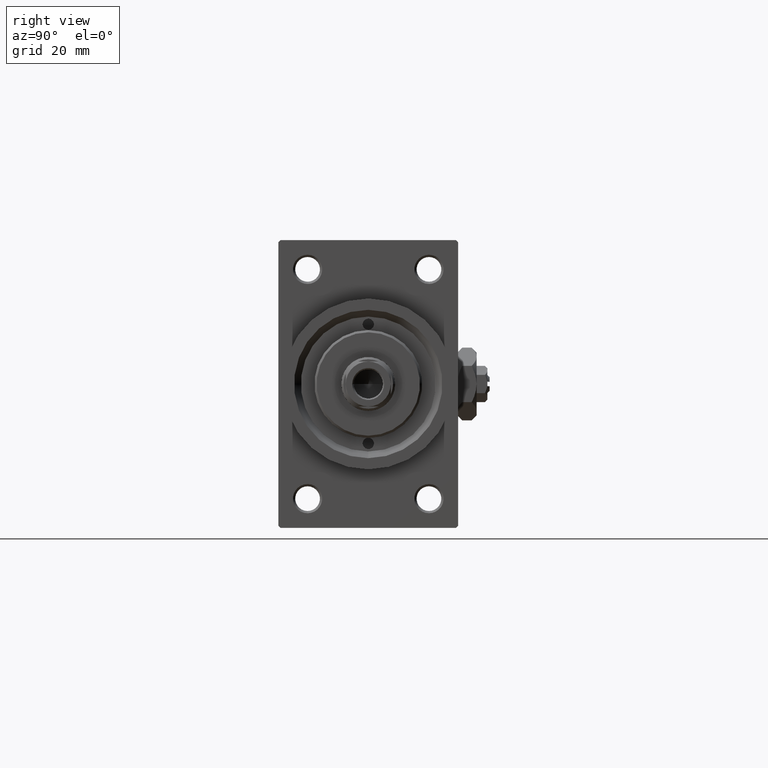
[diagram: clean part render]
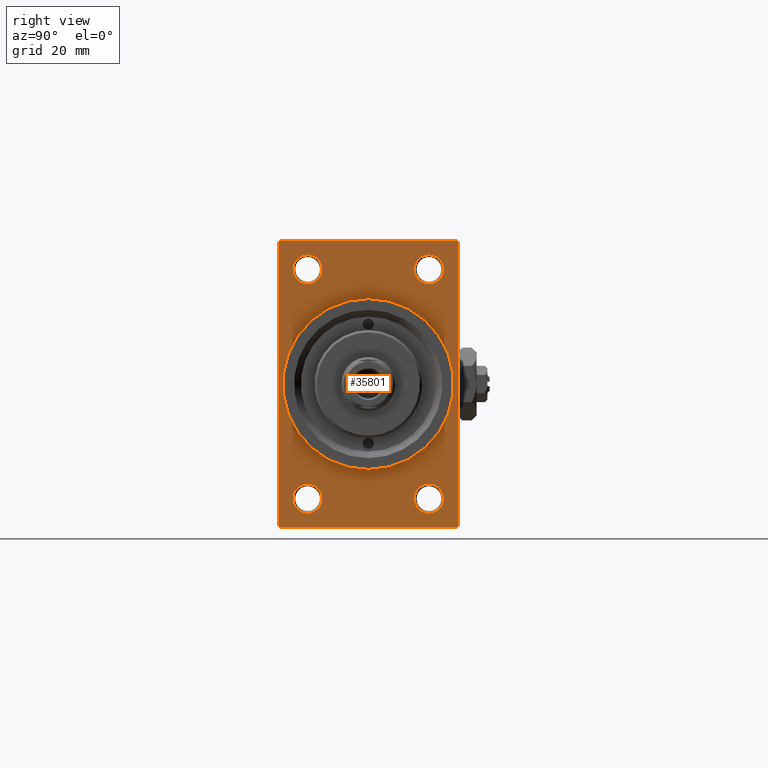
[diagram: same view with one face highlighted and labeled with its STEP entity id]
A machine part, right view. The second image highlights one B-rep face of the part: STEP entity #35801.
In plain terms, the highlighted planar face has unit normal (-1, 0, 0).
Its self-contained STEP definition (entity closure, byte-faithful):
#141 = EDGE_CURVE ( 'NONE', #18874, #3846, #30075, .T. ) ;
#264 = ORIENTED_EDGE ( 'NONE', *, *, #44603, .F. ) ;
#791 = DIRECTION ( 'NONE',  ( 0.000000000000000000, -1.000000000000000000, -1.734723475976807094E-16 ) ) ;
#867 = CARTESIAN_POINT ( 'NONE',  ( 109.0000000000000142, -20.00000000000000000, 31.99999999999999289 ) ) ;
#1477 = DIRECTION ( 'NONE',  ( -0.000000000000000000, 0.000000000000000000, 1.000000000000000000 ) ) ;
#1538 = CARTESIAN_POINT ( 'NONE',  ( 109.0000000000000142, -13.50000000000000533, -25.49999999999999645 ) ) ;
#1567 = AXIS2_PLACEMENT_3D ( 'NONE', #3922, #11346, #22986 ) ;
#1988 = ORIENTED_EDGE ( 'NONE', *, *, #42463, .T. ) ;
#2465 = CARTESIAN_POINT ( 'NONE',  ( 109.0000000000000142, 13.49999999999999822, 22.25000000000004263 ) ) ;
#3302 = VERTEX_POINT ( 'NONE', #43445 ) ;
#3702 = CIRCLE ( 'NONE', #32974, 3.249999999999961364 ) ;
#3846 = VERTEX_POINT ( 'NONE', #7112 ) ;
#3922 = CARTESIAN_POINT ( 'NONE',  ( 109.0000000000000142, 0.000000000000000000, 0.000000000000000000 ) ) ;
#4489 = CARTESIAN_POINT ( 'NONE',  ( 109.0000000000000142, 20.00000000000000000, 32.00000000000000000 ) ) ;
#4572 = DIRECTION ( 'NONE',  ( -1.000000000000000000, -0.000000000000000000, -0.000000000000000000 ) ) ;
#4925 = FACE_BOUND ( 'NONE', #12570, .T. ) ;
#5643 = CARTESIAN_POINT ( 'NONE',  ( 109.0000000000000142, 0.000000000000000000, 0.000000000000000000 ) ) ;
#5711 = CARTESIAN_POINT ( 'NONE',  ( 109.0000000000000142, 0.000000000000000000, 19.00000000000000000 ) ) ;
#5861 = DIRECTION ( 'NONE',  ( 0.000000000000000000, 0.000000000000000000, 1.000000000000000000 ) ) ;
#6114 = DIRECTION ( 'NONE',  ( -0.000000000000000000, 0.7071067811865474617, 0.7071067811865474617 ) ) ;
#6420 = VERTEX_POINT ( 'NONE', #36009 ) ;
#6839 = CARTESIAN_POINT ( 'NONE',  ( 109.0000000000000142, 20.00000000000000000, -31.49999999999998579 ) ) ;
#7112 = CARTESIAN_POINT ( 'NONE',  ( 109.0000000000000142, -20.00000000000000000, -31.49999999999997868 ) ) ;
#7279 = EDGE_CURVE ( 'NONE', #46365, #23432, #33681, .T. ) ;
#8070 = AXIS2_PLACEMENT_3D ( 'NONE', #27501, #38393, #30724 ) ;
#8392 = PLANE ( 'NONE',  #27912 ) ;
#8524 = CARTESIAN_POINT ( 'NONE',  ( 109.0000000000000142, -13.50000000000000533, -25.49999999999999645 ) ) ;
#8645 = FACE_BOUND ( 'NONE', #10812, .T. ) ;
#8891 = FACE_BOUND ( 'NONE', #32470, .T. ) ;
#9467 = EDGE_CURVE ( 'NONE', #11987, #48658, #24286, .T. ) ;
#9572 = ORIENTED_EDGE ( 'NONE', *, *, #28408, .F. ) ;
#9893 = DIRECTION ( 'NONE',  ( 0.000000000000000000, 0.000000000000000000, -1.000000000000000000 ) ) ;
#10466 = ORIENTED_EDGE ( 'NONE', *, *, #141, .T. ) ;
#10627 = CIRCLE ( 'NONE', #19350, 3.250000000000002665 ) ;
#10674 = LINE ( 'NONE', #25769, #46264 ) ;
#10676 = ORIENTED_EDGE ( 'NONE', *, *, #29156, .T. ) ;
#10812 = EDGE_LOOP ( 'NONE', ( #30684, #9572 ) ) ;
#11049 = CIRCLE ( 'NONE', #1567, 19.00000000000000000 ) ;
#11346 = DIRECTION ( 'NONE',  ( 1.000000000000000000, 0.000000000000000000, 0.000000000000000000 ) ) ;
#11987 = VERTEX_POINT ( 'NONE', #42115 ) ;
#12570 = EDGE_LOOP ( 'NONE', ( #46956, #10676 ) ) ;
#12898 = EDGE_CURVE ( 'NONE', #46845, #30341, #19323, .T. ) ;
#13048 = DIRECTION ( 'NONE',  ( -1.000000000000000000, -0.000000000000000000, -0.000000000000000000 ) ) ;
#13089 = FACE_OUTER_BOUND ( 'NONE', #17377, .T. ) ;
#13560 = DIRECTION ( 'NONE',  ( 1.000000000000000000, 0.000000000000000000, 0.000000000000000000 ) ) ;
#14614 = ORIENTED_EDGE ( 'NONE', *, *, #43240, .T. ) ;
#14626 = VECTOR ( 'NONE', #22649, 1000.000000000000000 ) ;
#16037 = EDGE_LOOP ( 'NONE', ( #42896, #41970 ) ) ;
#16092 = ORIENTED_EDGE ( 'NONE', *, *, #43674, .T. ) ;
#16309 = AXIS2_PLACEMENT_3D ( 'NONE', #5643, #13560, #16790 ) ;
#16335 = VERTEX_POINT ( 'NONE', #2465 ) ;
#16790 = DIRECTION ( 'NONE',  ( 0.000000000000000000, 0.000000000000000000, -1.000000000000000000 ) ) ;
#17377 = EDGE_LOOP ( 'NONE', ( #10466, #14614, #34081, #16092, #264, #35335, #17594, #27044 ) ) ;
#17594 = ORIENTED_EDGE ( 'NONE', *, *, #48882, .T. ) ;
#17746 = DIRECTION ( 'NONE',  ( -1.000000000000000000, -0.000000000000000000, -0.000000000000000000 ) ) ;
#18361 = CARTESIAN_POINT ( 'NONE',  ( 109.0000000000000142, 19.49999999999998579, 32.00000000000000000 ) ) ;
#18712 = AXIS2_PLACEMENT_3D ( 'NONE', #46954, #46719, #47200 ) ;
#18838 = LINE ( 'NONE', #18361, #46600 ) ;
#18874 = VERTEX_POINT ( 'NONE', #23436 ) ;
#19323 = LINE ( 'NONE', #41368, #22804 ) ;
#19347 = VERTEX_POINT ( 'NONE', #40183 ) ;
#19350 = AXIS2_PLACEMENT_3D ( 'NONE', #37817, #48737, #48498 ) ;
#20034 = CARTESIAN_POINT ( 'NONE',  ( 109.0000000000000142, 0.000000000000000000, 0.000000000000000000 ) ) ;
#20332 = AXIS2_PLACEMENT_3D ( 'NONE', #35581, #13048, #42528 ) ;
#20495 = CARTESIAN_POINT ( 'NONE',  ( 109.0000000000000142, 13.49999999999999822, 28.74999999999996803 ) ) ;
#21287 = CARTESIAN_POINT ( 'NONE',  ( 109.0000000000000142, 20.00000000000000000, 32.00000000000000000 ) ) ;
#21417 = VERTEX_POINT ( 'NONE', #20495 ) ;
#21954 = LINE ( 'NONE', #6839, #43123 ) ;
#22649 = DIRECTION ( 'NONE',  ( 0.000000000000000000, 0.000000000000000000, -1.000000000000000000 ) ) ;
#22789 = VERTEX_POINT ( 'NONE', #38709 ) ;
#22804 = VECTOR ( 'NONE', #48568, 1000.000000000000000 ) ;
#22932 = AXIS2_PLACEMENT_3D ( 'NONE', #8524, #4572, #27588 ) ;
#22986 = DIRECTION ( 'NONE',  ( 0.000000000000000000, 0.000000000000000000, -1.000000000000000000 ) ) ;
#23432 = VERTEX_POINT ( 'NONE', #46275 ) ;
#23435 = VERTEX_POINT ( 'NONE', #24216 ) ;
#23436 = CARTESIAN_POINT ( 'NONE',  ( 109.0000000000000142, -20.00000000000000000, 31.49999999999997868 ) ) ;
#24216 = CARTESIAN_POINT ( 'NONE',  ( 109.0000000000000142, -13.50000000000000533, -28.74999999999999645 ) ) ;
#24286 = CIRCLE ( 'NONE', #20332, 3.250000000000002665 ) ;
#24782 = DIRECTION ( 'NONE',  ( -1.000000000000000000, -0.000000000000000000, -0.000000000000000000 ) ) ;
#24830 = AXIS2_PLACEMENT_3D ( 'NONE', #1538, #24782, #42632 ) ;
#25298 = VERTEX_POINT ( 'NONE', #27956 ) ;
#25769 = CARTESIAN_POINT ( 'NONE',  ( 109.0000000000000142, -20.00000000000000000, 31.49999999999997868 ) ) ;
#25781 = DIRECTION ( 'NONE',  ( 0.000000000000000000, -0.7071067811865474617, 0.7071067811865474617 ) ) ;
#27044 = ORIENTED_EDGE ( 'NONE', *, *, #43398, .T. ) ;
#27182 = EDGE_CURVE ( 'NONE', #25298, #22789, #18838, .T. ) ;
#27200 = CIRCLE ( 'NONE', #24830, 3.250000000000002665 ) ;
#27501 = CARTESIAN_POINT ( 'NONE',  ( 109.0000000000000142, 13.49999999999999822, 25.50000000000000355 ) ) ;
#27538 = CARTESIAN_POINT ( 'NONE',  ( 109.0000000000000142, -19.49999999999998579, -32.00000000000000000 ) ) ;
#27588 = DIRECTION ( 'NONE',  ( 0.000000000000000000, 0.000000000000000000, 1.000000000000000000 ) ) ;
#27912 = AXIS2_PLACEMENT_3D ( 'NONE', #20034, #39085, #1477 ) ;
#27956 = CARTESIAN_POINT ( 'NONE',  ( 109.0000000000000142, 20.00000000000000000, 31.49999999999998579 ) ) ;
#28217 = LINE ( 'NONE', #21287, #47107 ) ;
#28408 = EDGE_CURVE ( 'NONE', #23432, #46365, #11049, .T. ) ;
#29035 = VECTOR ( 'NONE', #791, 1000.000000000000000 ) ;
#29156 = EDGE_CURVE ( 'NONE', #6420, #23435, #37946, .T. ) ;
#29943 = VERTEX_POINT ( 'NONE', #45517 ) ;
#30075 = LINE ( 'NONE', #867, #14626 ) ;
#30341 = VERTEX_POINT ( 'NONE', #38682 ) ;
#30684 = ORIENTED_EDGE ( 'NONE', *, *, #7279, .F. ) ;
#30724 = DIRECTION ( 'NONE',  ( 0.000000000000000000, 0.000000000000000000, 1.000000000000000000 ) ) ;
#31401 = CARTESIAN_POINT ( 'NONE',  ( 109.0000000000000142, -13.50000000000000178, 22.25000000000000000 ) ) ;
#31596 = ORIENTED_EDGE ( 'NONE', *, *, #47629, .T. ) ;
#31911 = FACE_BOUND ( 'NONE', #16037, .T. ) ;
#32042 = VECTOR ( 'NONE', #42655, 1000.000000000000000 ) ;
#32470 = EDGE_LOOP ( 'NONE', ( #1988, #42043 ) ) ;
#32974 = AXIS2_PLACEMENT_3D ( 'NONE', #38289, #45987, #34575 ) ;
#33449 = DIRECTION ( 'NONE',  ( -0.000000000000000000, -0.7071067811865474617, -0.7071067811865474617 ) ) ;
#33681 = CIRCLE ( 'NONE', #16309, 19.00000000000000000 ) ;
#34081 = ORIENTED_EDGE ( 'NONE', *, *, #12898, .F. ) ;
#34575 = DIRECTION ( 'NONE',  ( 0.000000000000000000, 0.000000000000000000, 1.000000000000000000 ) ) ;
#35335 = ORIENTED_EDGE ( 'NONE', *, *, #27182, .T. ) ;
#35378 = FACE_BOUND ( 'NONE', #45075, .T. ) ;
#35581 = CARTESIAN_POINT ( 'NONE',  ( 109.0000000000000142, 13.49999999999999822, -25.50000000000000000 ) ) ;
#35801 = ADVANCED_FACE ( 'NONE', ( #8891, #4925, #31911, #35378, #8645, #13089 ), #8392, .F. ) ;
#35936 = AXIS2_PLACEMENT_3D ( 'NONE', #40270, #17746, #5861 ) ;
#36009 = CARTESIAN_POINT ( 'NONE',  ( 109.0000000000000142, -13.50000000000000533, -22.24999999999999289 ) ) ;
#37521 = EDGE_CURVE ( 'NONE', #21417, #16335, #45279, .T. ) ;
#37817 = CARTESIAN_POINT ( 'NONE',  ( 109.0000000000000142, -13.50000000000000178, 25.50000000000000355 ) ) ;
#37946 = CIRCLE ( 'NONE', #22932, 3.250000000000002665 ) ;
#38289 = CARTESIAN_POINT ( 'NONE',  ( 109.0000000000000142, 13.49999999999999822, 25.50000000000000355 ) ) ;
#38393 = DIRECTION ( 'NONE',  ( -1.000000000000000000, -0.000000000000000000, -0.000000000000000000 ) ) ;
#38547 = ORIENTED_EDGE ( 'NONE', *, *, #37521, .T. ) ;
#38682 = CARTESIAN_POINT ( 'NONE',  ( 109.0000000000000142, -19.49999999999998579, -32.00000000000000000 ) ) ;
#38709 = CARTESIAN_POINT ( 'NONE',  ( 109.0000000000000142, 19.49999999999998579, 32.00000000000000000 ) ) ;
#39085 = DIRECTION ( 'NONE',  ( -1.000000000000000000, 0.000000000000000000, -0.000000000000000000 ) ) ;
#39886 = CIRCLE ( 'NONE', #35936, 3.250000000000002665 ) ;
#40183 = CARTESIAN_POINT ( 'NONE',  ( 109.0000000000000142, 20.00000000000000000, -31.49999999999998579 ) ) ;
#40270 = CARTESIAN_POINT ( 'NONE',  ( 109.0000000000000142, -13.50000000000000178, 25.50000000000000355 ) ) ;
#41034 = CARTESIAN_POINT ( 'NONE',  ( 109.0000000000000142, 19.49999999999998579, -32.00000000000000000 ) ) ;
#41127 = EDGE_CURVE ( 'NONE', #23435, #6420, #27200, .T. ) ;
#41368 = CARTESIAN_POINT ( 'NONE',  ( 109.0000000000000142, 20.00000000000000000, -32.00000000000000000 ) ) ;
#41970 = ORIENTED_EDGE ( 'NONE', *, *, #9467, .T. ) ;
#42043 = ORIENTED_EDGE ( 'NONE', *, *, #42717, .T. ) ;
#42115 = CARTESIAN_POINT ( 'NONE',  ( 109.0000000000000142, 13.49999999999999822, -22.24999999999999645 ) ) ;
#42127 = LINE ( 'NONE', #4489, #29035 ) ;
#42433 = CIRCLE ( 'NONE', #18712, 3.250000000000002665 ) ;
#42463 = EDGE_CURVE ( 'NONE', #48063, #3302, #10627, .T. ) ;
#42528 = DIRECTION ( 'NONE',  ( 0.000000000000000000, 0.000000000000000000, 1.000000000000000000 ) ) ;
#42632 = DIRECTION ( 'NONE',  ( 0.000000000000000000, 0.000000000000000000, 1.000000000000000000 ) ) ;
#42655 = DIRECTION ( 'NONE',  ( 0.000000000000000000, 0.7071067811865426878, -0.7071067811865524577 ) ) ;
#42717 = EDGE_CURVE ( 'NONE', #3302, #48063, #39886, .T. ) ;
#42896 = ORIENTED_EDGE ( 'NONE', *, *, #47654, .T. ) ;
#43123 = VECTOR ( 'NONE', #6114, 1000.000000000000114 ) ;
#43240 = EDGE_CURVE ( 'NONE', #3846, #30341, #46368, .T. ) ;
#43398 = EDGE_CURVE ( 'NONE', #29943, #18874, #10674, .T. ) ;
#43445 = CARTESIAN_POINT ( 'NONE',  ( 109.0000000000000142, -13.50000000000000178, 28.75000000000000355 ) ) ;
#43674 = EDGE_CURVE ( 'NONE', #46845, #19347, #21954, .T. ) ;
#44603 = EDGE_CURVE ( 'NONE', #25298, #19347, #28217, .T. ) ;
#45075 = EDGE_LOOP ( 'NONE', ( #31596, #38547 ) ) ;
#45170 = CARTESIAN_POINT ( 'NONE',  ( 109.0000000000000142, 13.49999999999999822, -28.75000000000000000 ) ) ;
#45279 = CIRCLE ( 'NONE', #8070, 3.249999999999961364 ) ;
#45517 = CARTESIAN_POINT ( 'NONE',  ( 109.0000000000000142, -19.49999999999998579, 31.99999999999999289 ) ) ;
#45987 = DIRECTION ( 'NONE',  ( -1.000000000000000000, -0.000000000000000000, -0.000000000000000000 ) ) ;
#46264 = VECTOR ( 'NONE', #33449, 1000.000000000000114 ) ;
#46275 = CARTESIAN_POINT ( 'NONE',  ( 109.0000000000000142, 2.326828918379970970E-15, -19.00000000000000000 ) ) ;
#46365 = VERTEX_POINT ( 'NONE', #5711 ) ;
#46368 = LINE ( 'NONE', #27538, #32042 ) ;
#46600 = VECTOR ( 'NONE', #25781, 1000.000000000000114 ) ;
#46719 = DIRECTION ( 'NONE',  ( -1.000000000000000000, -0.000000000000000000, -0.000000000000000000 ) ) ;
#46845 = VERTEX_POINT ( 'NONE', #41034 ) ;
#46954 = CARTESIAN_POINT ( 'NONE',  ( 109.0000000000000142, 13.49999999999999822, -25.50000000000000000 ) ) ;
#46956 = ORIENTED_EDGE ( 'NONE', *, *, #41127, .T. ) ;
#47107 = VECTOR ( 'NONE', #9893, 1000.000000000000000 ) ;
#47200 = DIRECTION ( 'NONE',  ( 0.000000000000000000, 0.000000000000000000, 1.000000000000000000 ) ) ;
#47629 = EDGE_CURVE ( 'NONE', #16335, #21417, #3702, .T. ) ;
#47654 = EDGE_CURVE ( 'NONE', #48658, #11987, #42433, .T. ) ;
#48063 = VERTEX_POINT ( 'NONE', #31401 ) ;
#48498 = DIRECTION ( 'NONE',  ( 0.000000000000000000, 0.000000000000000000, 1.000000000000000000 ) ) ;
#48568 = DIRECTION ( 'NONE',  ( 0.000000000000000000, -1.000000000000000000, 0.000000000000000000 ) ) ;
#48658 = VERTEX_POINT ( 'NONE', #45170 ) ;
#48737 = DIRECTION ( 'NONE',  ( -1.000000000000000000, -0.000000000000000000, -0.000000000000000000 ) ) ;
#48882 = EDGE_CURVE ( 'NONE', #22789, #29943, #42127, .T. ) ;